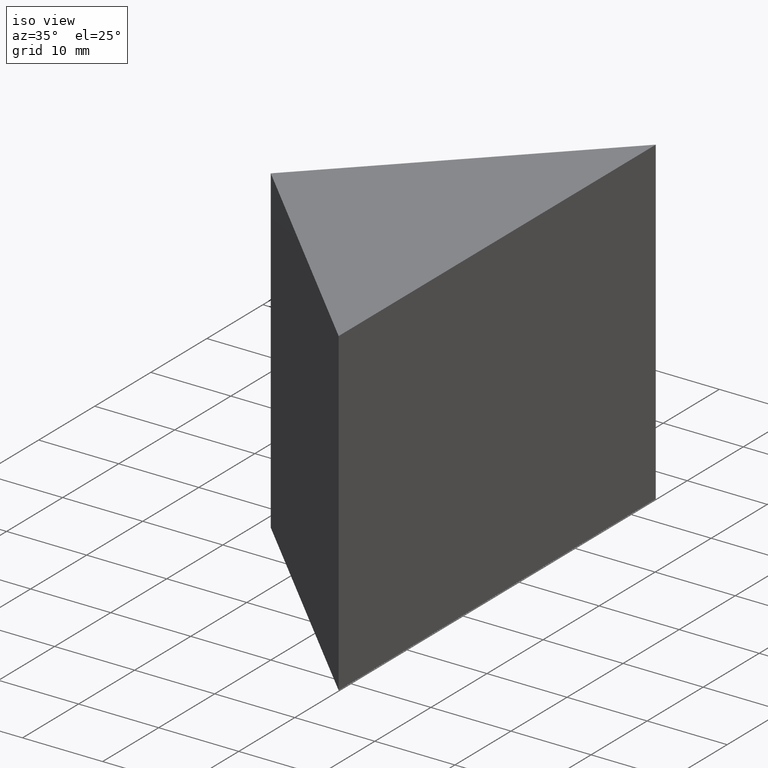
[diagram: clean part render]
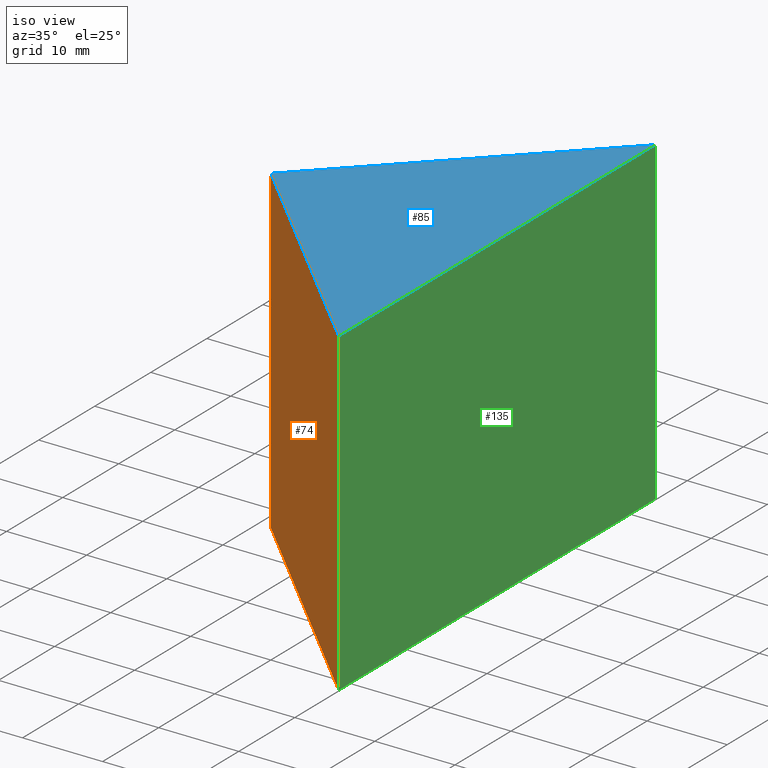
[diagram: same view with three faces highlighted in distinct colors, each labeled with its STEP entity id]
A machine part, iso view with three faces highlighted in distinct colors.
Their STEP definitions:

[orange] entity #74 — the highlighted planar face has unit normal (0.7071, 0.7071, -0).
#1 = FACE_OUTER_BOUND ( 'NONE', #131, .T. ) ;
#5 = VECTOR ( 'NONE', #14, 1000.000000000000000 ) ;
#14 = DIRECTION ( 'NONE',  ( -0.0000000000000000000, -0.0000000000000000000, -1.000000000000000000 ) ) ;
#23 = DIRECTION ( 'NONE',  ( 0.7071067811865475700, 0.7071067811865475700, -0.0000000000000000000 ) ) ;
#24 = CARTESIAN_POINT ( 'NONE',  ( 563.0071948272914100, 144.2705164697499600, 40.00000000000000000 ) ) ;
#28 = DIRECTION ( 'NONE',  ( -0.0000000000000000000, -0.0000000000000000000, -1.000000000000000000 ) ) ;
#30 = VECTOR ( 'NONE', #105, 1000.000000000000100 ) ;
#33 = ORIENTED_EDGE ( 'NONE', *, *, #146, .F. ) ;
#42 = CARTESIAN_POINT ( 'NONE',  ( 591.2914660747533200, 115.9862452222880600, 40.00000000000000000 ) ) ;
#52 = EDGE_CURVE ( 'NONE', #59, #77, #69, .T. ) ;
#59 = VERTEX_POINT ( 'NONE', #87 ) ;
#64 = LINE ( 'NONE', #140, #30 ) ;
#69 = LINE ( 'NONE', #115, #141 ) ;
#70 = LINE ( 'NONE', #119, #5 ) ;
#71 = ORIENTED_EDGE ( 'NONE', *, *, #116, .T. ) ;
#74 = ADVANCED_FACE ( 'NONE', ( #1 ), #166, .F. ) ;
#77 = VERTEX_POINT ( 'NONE', #125 ) ;
#87 = CARTESIAN_POINT ( 'NONE',  ( 563.0071948272914100, 144.2705164697499600, 40.00000000000000000 ) ) ;
#92 = CARTESIAN_POINT ( 'NONE',  ( 591.2914660747533200, 115.9862452222880600, 0.0000000000000000000 ) ) ;
#93 = VECTOR ( 'NONE', #28, 1000.000000000000000 ) ;
#95 = VERTEX_POINT ( 'NONE', #101 ) ;
#97 = DIRECTION ( 'NONE',  ( 0.7071067811865474600, -0.7071067811865474600, 0.0000000000000000000 ) ) ;
#99 = ORIENTED_EDGE ( 'NONE', *, *, #157, .T. ) ;
#101 = CARTESIAN_POINT ( 'NONE',  ( 563.0071948272914100, 144.2705164697499600, 0.0000000000000000000 ) ) ;
#105 = DIRECTION ( 'NONE',  ( 0.7071067811865474600, -0.7071067811865474600, 0.0000000000000000000 ) ) ;
#115 = CARTESIAN_POINT ( 'NONE',  ( 563.0071948272914100, 144.2705164697499600, 40.00000000000000000 ) ) ;
#116 = EDGE_CURVE ( 'NONE', #59, #95, #70, .T. ) ;
#119 = CARTESIAN_POINT ( 'NONE',  ( 563.0071948272914100, 144.2705164697499600, 40.00000000000000000 ) ) ;
#120 = VERTEX_POINT ( 'NONE', #92 ) ;
#125 = CARTESIAN_POINT ( 'NONE',  ( 591.2914660747533200, 115.9862452222880600, 40.00000000000000000 ) ) ;
#131 = EDGE_LOOP ( 'NONE', ( #99, #33, #165, #71 ) ) ;
#140 = CARTESIAN_POINT ( 'NONE',  ( 563.0071948272914100, 144.2705164697499600, 0.0000000000000000000 ) ) ;
#141 = VECTOR ( 'NONE', #97, 1000.000000000000100 ) ;
#146 = EDGE_CURVE ( 'NONE', #77, #120, #161, .T. ) ;
#147 = DIRECTION ( 'NONE',  ( -0.7071067811865474600, 0.7071067811865474600, 0.0000000000000000000 ) ) ;
#157 = EDGE_CURVE ( 'NONE', #95, #120, #64, .T. ) ;
#161 = LINE ( 'NONE', #42, #93 ) ;
#165 = ORIENTED_EDGE ( 'NONE', *, *, #52, .F. ) ;
#166 = PLANE ( 'NONE',  #168 ) ;
#168 = AXIS2_PLACEMENT_3D ( 'NONE', #24, #23, #147 ) ;

[blue] entity #85 — the highlighted planar face has unit normal (-0, 0, 1).
#4 = VECTOR ( 'NONE', #55, 1000.000000000000000 ) ;
#8 = LINE ( 'NONE', #113, #22 ) ;
#9 = DIRECTION ( 'NONE',  ( 0.0000000000000000000, 1.000000000000000000, 0.0000000000000000000 ) ) ;
#17 = AXIS2_PLACEMENT_3D ( 'NONE', #152, #154, #155 ) ;
#22 = VECTOR ( 'NONE', #9, 1000.000000000000000 ) ;
#29 = EDGE_CURVE ( 'NONE', #77, #145, #8, .T. ) ;
#52 = EDGE_CURVE ( 'NONE', #59, #77, #69, .T. ) ;
#55 = DIRECTION ( 'NONE',  ( -0.7071067811865479100, -0.7071067811865472400, -0.0000000000000000000 ) ) ;
#59 = VERTEX_POINT ( 'NONE', #87 ) ;
#67 = PLANE ( 'NONE',  #17 ) ;
#69 = LINE ( 'NONE', #115, #141 ) ;
#72 = ORIENTED_EDGE ( 'NONE', *, *, #52, .T. ) ;
#77 = VERTEX_POINT ( 'NONE', #125 ) ;
#80 = CARTESIAN_POINT ( 'NONE',  ( 563.0071948272914100, 144.2705164697499600, 40.00000000000000000 ) ) ;
#81 = EDGE_LOOP ( 'NONE', ( #72, #122, #108 ) ) ;
#85 = ADVANCED_FACE ( 'NONE', ( #98 ), #67, .T. ) ;
#87 = CARTESIAN_POINT ( 'NONE',  ( 563.0071948272914100, 144.2705164697499600, 40.00000000000000000 ) ) ;
#97 = DIRECTION ( 'NONE',  ( 0.7071067811865474600, -0.7071067811865474600, 0.0000000000000000000 ) ) ;
#98 = FACE_OUTER_BOUND ( 'NONE', #81, .T. ) ;
#106 = CARTESIAN_POINT ( 'NONE',  ( 591.2914660747533200, 172.5547877172118700, 40.00000000000000000 ) ) ;
#108 = ORIENTED_EDGE ( 'NONE', *, *, #132, .T. ) ;
#113 = CARTESIAN_POINT ( 'NONE',  ( 591.2914660747533200, 115.9862452222880600, 40.00000000000000000 ) ) ;
#115 = CARTESIAN_POINT ( 'NONE',  ( 563.0071948272914100, 144.2705164697499600, 40.00000000000000000 ) ) ;
#122 = ORIENTED_EDGE ( 'NONE', *, *, #29, .T. ) ;
#125 = CARTESIAN_POINT ( 'NONE',  ( 591.2914660747533200, 115.9862452222880600, 40.00000000000000000 ) ) ;
#132 = EDGE_CURVE ( 'NONE', #145, #59, #159, .T. ) ;
#141 = VECTOR ( 'NONE', #97, 1000.000000000000100 ) ;
#145 = VERTEX_POINT ( 'NONE', #106 ) ;
#152 = CARTESIAN_POINT ( 'NONE',  ( 0.0000000000000000000, 0.0000000000000000000, 40.00000000000000000 ) ) ;
#154 = DIRECTION ( 'NONE',  ( -0.0000000000000000000, 0.0000000000000000000, 1.000000000000000000 ) ) ;
#155 = DIRECTION ( 'NONE',  ( 1.000000000000000000, 0.0000000000000000000, 0.0000000000000000000 ) ) ;
#159 = LINE ( 'NONE', #80, #4 ) ;

[green] entity #135 — the highlighted planar face has unit normal (-1, 0, 0).
#3 = DIRECTION ( 'NONE',  ( 0.0000000000000000000, 0.0000000000000000000, 1.000000000000000000 ) ) ;
#8 = LINE ( 'NONE', #113, #22 ) ;
#9 = DIRECTION ( 'NONE',  ( 0.0000000000000000000, 1.000000000000000000, 0.0000000000000000000 ) ) ;
#15 = ORIENTED_EDGE ( 'NONE', *, *, #75, .F. ) ;
#18 = VERTEX_POINT ( 'NONE', #36 ) ;
#21 = CARTESIAN_POINT ( 'NONE',  ( 591.2914660747533200, 172.5547877172118700, 40.00000000000000000 ) ) ;
#22 = VECTOR ( 'NONE', #9, 1000.000000000000000 ) ;
#28 = DIRECTION ( 'NONE',  ( -0.0000000000000000000, -0.0000000000000000000, -1.000000000000000000 ) ) ;
#29 = EDGE_CURVE ( 'NONE', #77, #145, #8, .T. ) ;
#35 = ORIENTED_EDGE ( 'NONE', *, *, #146, .T. ) ;
#36 = CARTESIAN_POINT ( 'NONE',  ( 591.2914660747533200, 172.5547877172118700, 0.0000000000000000000 ) ) ;
#38 = DIRECTION ( 'NONE',  ( -0.0000000000000000000, -0.0000000000000000000, -1.000000000000000000 ) ) ;
#42 = CARTESIAN_POINT ( 'NONE',  ( 591.2914660747533200, 115.9862452222880600, 40.00000000000000000 ) ) ;
#44 = CARTESIAN_POINT ( 'NONE',  ( 591.2914660747533200, 115.9862452222880600, 40.00000000000000000 ) ) ;
#47 = DIRECTION ( 'NONE',  ( 0.0000000000000000000, 1.000000000000000000, 0.0000000000000000000 ) ) ;
#49 = VECTOR ( 'NONE', #38, 1000.000000000000000 ) ;
#51 = EDGE_LOOP ( 'NONE', ( #149, #15, #91, #35 ) ) ;
#56 = AXIS2_PLACEMENT_3D ( 'NONE', #44, #102, #3 ) ;
#73 = VECTOR ( 'NONE', #47, 1000.000000000000000 ) ;
#75 = EDGE_CURVE ( 'NONE', #145, #18, #158, .T. ) ;
#77 = VERTEX_POINT ( 'NONE', #125 ) ;
#78 = PLANE ( 'NONE',  #56 ) ;
#86 = CARTESIAN_POINT ( 'NONE',  ( 591.2914660747533200, 115.9862452222880600, 0.0000000000000000000 ) ) ;
#88 = EDGE_CURVE ( 'NONE', #120, #18, #133, .T. ) ;
#91 = ORIENTED_EDGE ( 'NONE', *, *, #29, .F. ) ;
#92 = CARTESIAN_POINT ( 'NONE',  ( 591.2914660747533200, 115.9862452222880600, 0.0000000000000000000 ) ) ;
#93 = VECTOR ( 'NONE', #28, 1000.000000000000000 ) ;
#102 = DIRECTION ( 'NONE',  ( -1.000000000000000000, 0.0000000000000000000, 0.0000000000000000000 ) ) ;
#106 = CARTESIAN_POINT ( 'NONE',  ( 591.2914660747533200, 172.5547877172118700, 40.00000000000000000 ) ) ;
#113 = CARTESIAN_POINT ( 'NONE',  ( 591.2914660747533200, 115.9862452222880600, 40.00000000000000000 ) ) ;
#120 = VERTEX_POINT ( 'NONE', #92 ) ;
#125 = CARTESIAN_POINT ( 'NONE',  ( 591.2914660747533200, 115.9862452222880600, 40.00000000000000000 ) ) ;
#130 = FACE_OUTER_BOUND ( 'NONE', #51, .T. ) ;
#133 = LINE ( 'NONE', #86, #73 ) ;
#135 = ADVANCED_FACE ( 'NONE', ( #130 ), #78, .F. ) ;
#145 = VERTEX_POINT ( 'NONE', #106 ) ;
#146 = EDGE_CURVE ( 'NONE', #77, #120, #161, .T. ) ;
#149 = ORIENTED_EDGE ( 'NONE', *, *, #88, .T. ) ;
#158 = LINE ( 'NONE', #21, #49 ) ;
#161 = LINE ( 'NONE', #42, #93 ) ;